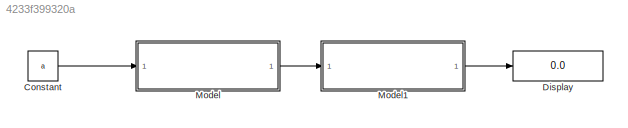
MODEL slx_4233f399320a
KIND model
CONFIG AbsTol = auto
CONFIG EnableMultiTasking = off
CONFIG FixedStep = auto
CONFIG InitFcn = Init
CONFIG MaxStep = auto
CONFIG MinStep = auto
CONFIG PreLoadFcn = Init
CONFIG RelTol = 1e-3
CONFIG SampleTimeConstraint = Unconstrained
CONFIG Solver = VariableStepAuto
CONFIG SolverName = VariableStepAuto
CONFIG StartTime = 0.0
CONFIG StopTime = 10.0
BLOCK [Constant] Constant
  Value = a
BLOCK [Display] Display
  Decimation = 1
  Ports = [1]
BLOCK [ModelReference] Model
  ModelNameDialog = k1
  ModelReferenceVersion = 1.2
  Ports = [1, 1]
BLOCK [ModelReference] Model1
  ModelNameDialog = Addk2
  ModelReferenceVersion = 1.3
  Ports = [1, 1]
LINE Constant:1 -> Model:1
LINE Model1:1 -> Display:1
LINE Model:1 -> Model1:1
